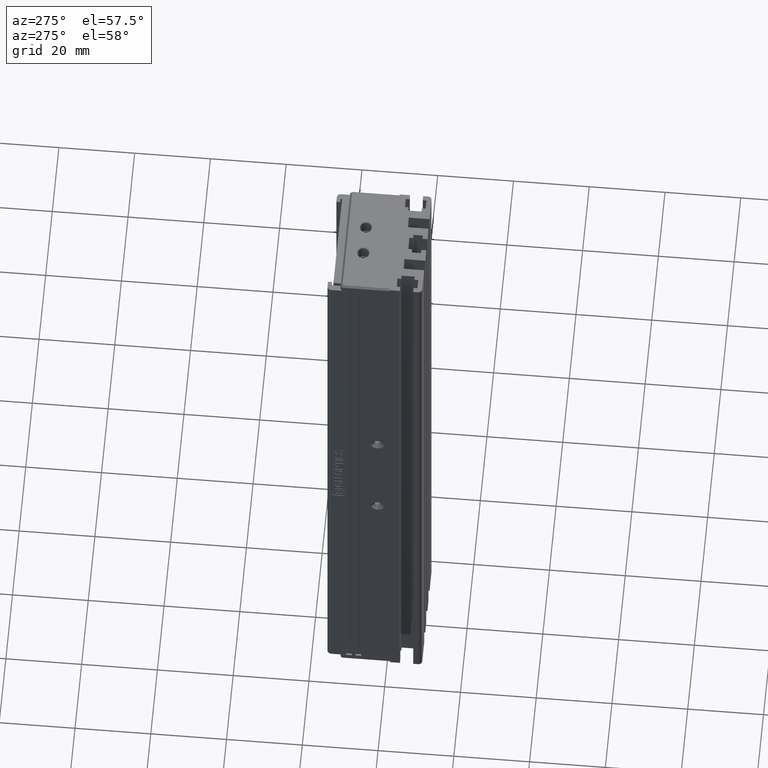
[diagram: clean part render]
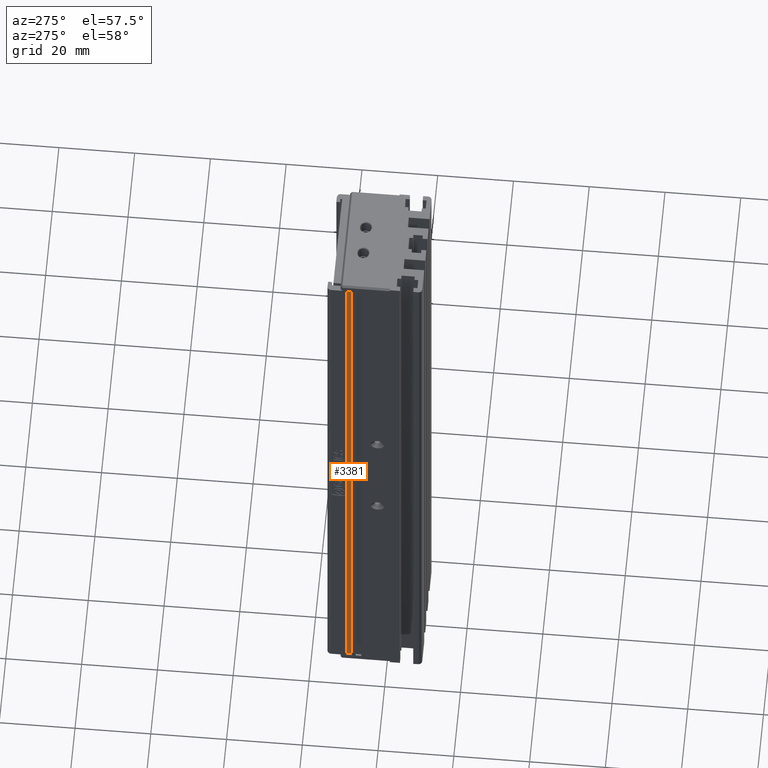
[diagram: same view with one face highlighted and labeled with its STEP entity id]
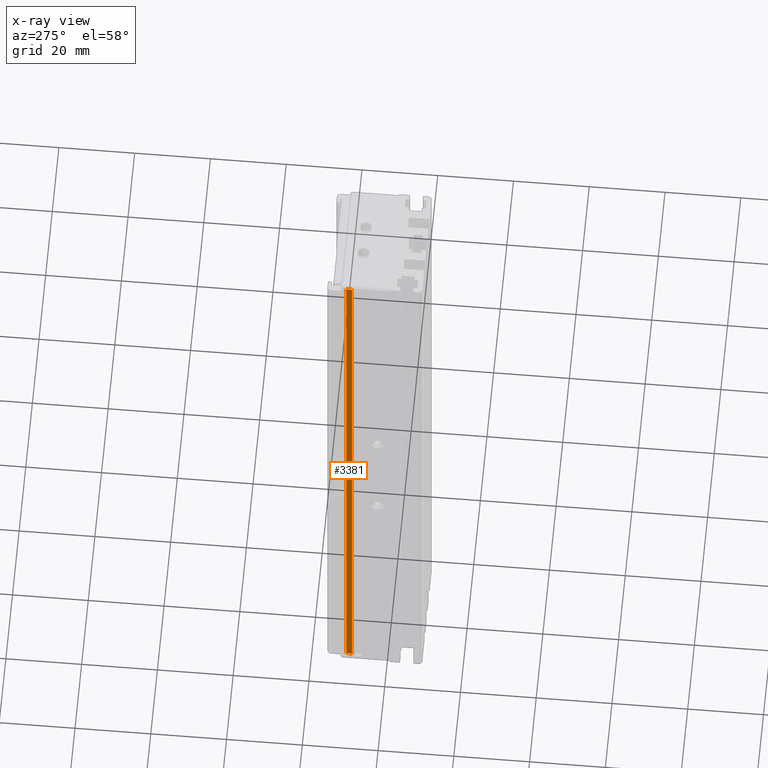
[diagram: x-ray of the same camera — body ghosted, the highlighted face saturated]
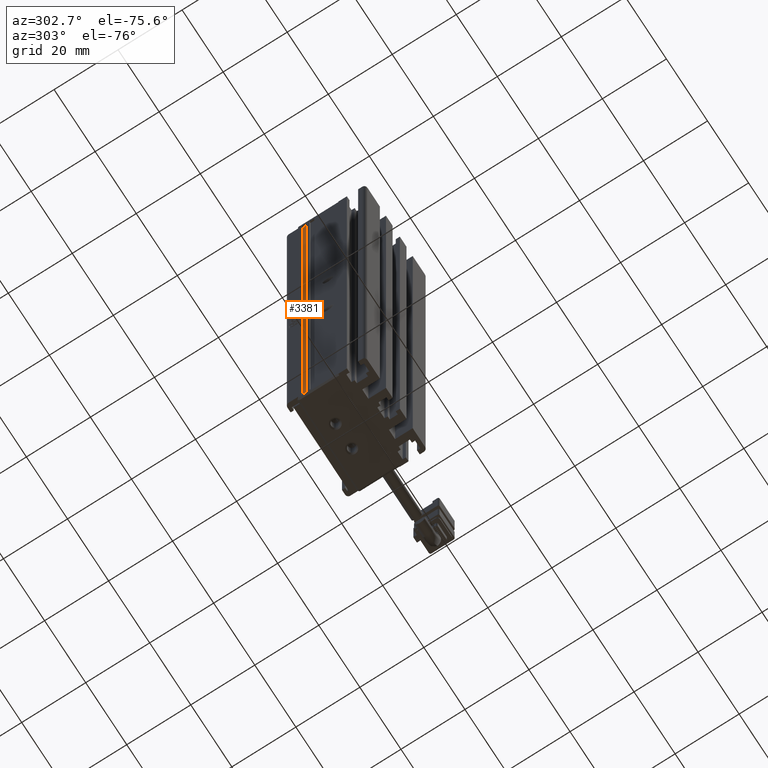
[diagram: same view with one face highlighted and labeled with its STEP entity id]
A machine part, auxiliary view. The second image highlights one B-rep face of the part: STEP entity #3381.
The next image is the same camera in x-ray: the body ghosted, the highlighted face saturated — about 0% of this face is hidden behind the body in this view.
A second angle (auxiliary view) of the same face is appended — the face is thin or edge-on in the first view.
In plain terms, the highlighted planar face has unit normal (1, 0, -0).
Its self-contained STEP definition (entity closure, byte-faithful):
#1776 = VECTOR ( 'NONE', #18459, 1000.000000000000000 ) ;
#2824 = EDGE_CURVE ( 'NONE', #40865, #23141, #21338, .T. ) ;
#3381 = ADVANCED_FACE ( 'NONE', ( #27889 ), #4034, .F. ) ;
#3436 = DIRECTION ( 'NONE',  ( -0.0000000000000000000, 0.0000000000000000000, -1.000000000000000000 ) ) ;
#3468 = DIRECTION ( 'NONE',  ( 1.000000000000000000, 0.0000000000000000000, -0.0000000000000000000 ) ) ;
#3576 = CARTESIAN_POINT ( 'NONE',  ( 26.42537974683542100, 7.083797468354437600, -24.00000000000000700 ) ) ;
#4034 = PLANE ( 'NONE',  #15146 ) ;
#4181 = ORIENTED_EDGE ( 'NONE', *, *, #24767, .T. ) ;
#4451 = LINE ( 'NONE', #37539, #22242 ) ;
#4544 = LINE ( 'NONE', #39335, #40129 ) ;
#10993 = CARTESIAN_POINT ( 'NONE',  ( 26.42537974683541800, 29.19594479660387500, -204.0000000000000300 ) ) ;
#12174 = EDGE_CURVE ( 'NONE', #23141, #25320, #4544, .T. ) ;
#15146 = AXIS2_PLACEMENT_3D ( 'NONE', #3576, #3468, #3436 ) ;
#15222 = CARTESIAN_POINT ( 'NONE',  ( 26.42537974683542100, 7.083797468354437600, -26.00000000000001100 ) ) ;
#15722 = CARTESIAN_POINT ( 'NONE',  ( 26.42537974683541800, 30.69594479660386800, -25.99999999999999600 ) ) ;
#15884 = DIRECTION ( 'NONE',  ( 0.0000000000000000000, 1.000000000000000000, 0.0000000000000000000 ) ) ;
#16309 = ORIENTED_EDGE ( 'NONE', *, *, #2824, .F. ) ;
#17146 = ORIENTED_EDGE ( 'NONE', *, *, #32242, .F. ) ;
#18459 = DIRECTION ( 'NONE',  ( -0.0000000000000000000, -1.000000000000000000, -0.0000000000000000000 ) ) ;
#20247 = VECTOR ( 'NONE', #22740, 1000.000000000000000 ) ;
#21338 = LINE ( 'NONE', #23157, #20247 ) ;
#22242 = VECTOR ( 'NONE', #24457, 1000.000000000000000 ) ;
#22740 = DIRECTION ( 'NONE',  ( -0.0000000000000000000, 0.0000000000000000000, -1.000000000000000000 ) ) ;
#23141 = VERTEX_POINT ( 'NONE', #10993 ) ;
#23157 = CARTESIAN_POINT ( 'NONE',  ( 26.42537974683542100, 29.19594479660387200, -24.00000000000000700 ) ) ;
#24457 = DIRECTION ( 'NONE',  ( -0.0000000000000000000, 0.0000000000000000000, -1.000000000000000000 ) ) ;
#24767 = EDGE_CURVE ( 'NONE', #26561, #25320, #4451, .T. ) ;
#25320 = VERTEX_POINT ( 'NONE', #41693 ) ;
#26561 = VERTEX_POINT ( 'NONE', #15722 ) ;
#27391 = LINE ( 'NONE', #15222, #1776 ) ;
#27889 = FACE_OUTER_BOUND ( 'NONE', #28967, .T. ) ;
#28808 = CARTESIAN_POINT ( 'NONE',  ( 26.42537974683541800, 29.19594479660387500, -25.99999999999999600 ) ) ;
#28967 = EDGE_LOOP ( 'NONE', ( #17146, #4181, #42297, #16309 ) ) ;
#32242 = EDGE_CURVE ( 'NONE', #26561, #40865, #27391, .T. ) ;
#37539 = CARTESIAN_POINT ( 'NONE',  ( 26.42537974683542100, 30.69594479660386800, -24.00000000000000700 ) ) ;
#39335 = CARTESIAN_POINT ( 'NONE',  ( 26.42537974683542100, 7.083797468354437600, -204.0000000000000300 ) ) ;
#40129 = VECTOR ( 'NONE', #15884, 1000.000000000000000 ) ;
#40865 = VERTEX_POINT ( 'NONE', #28808 ) ;
#41693 = CARTESIAN_POINT ( 'NONE',  ( 26.42537974683541800, 30.69594479660386800, -204.0000000000000300 ) ) ;
#42297 = ORIENTED_EDGE ( 'NONE', *, *, #12174, .F. ) ;